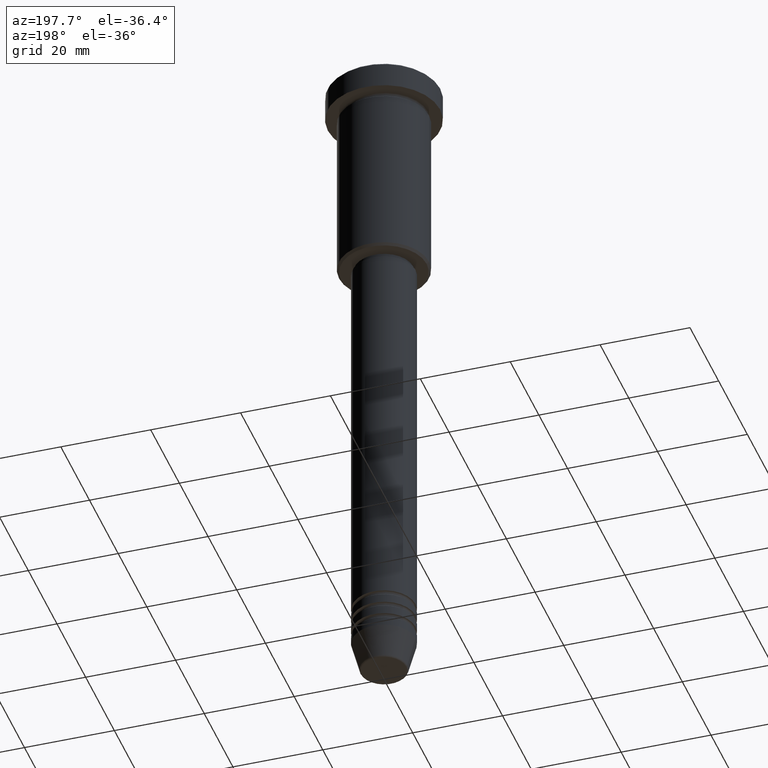
[diagram: clean part render]
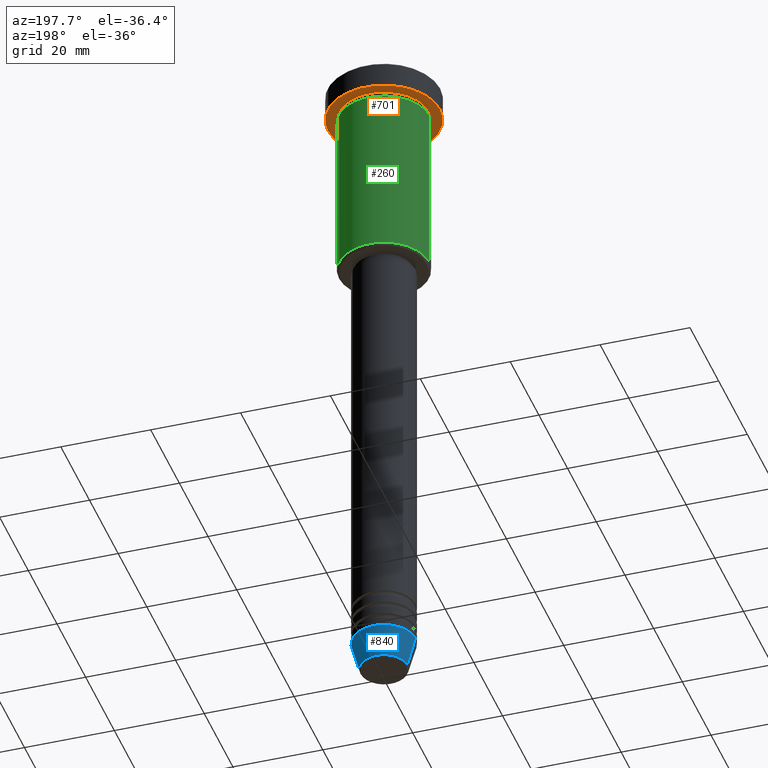
[diagram: same view with three faces highlighted in distinct colors, each labeled with its STEP entity id]
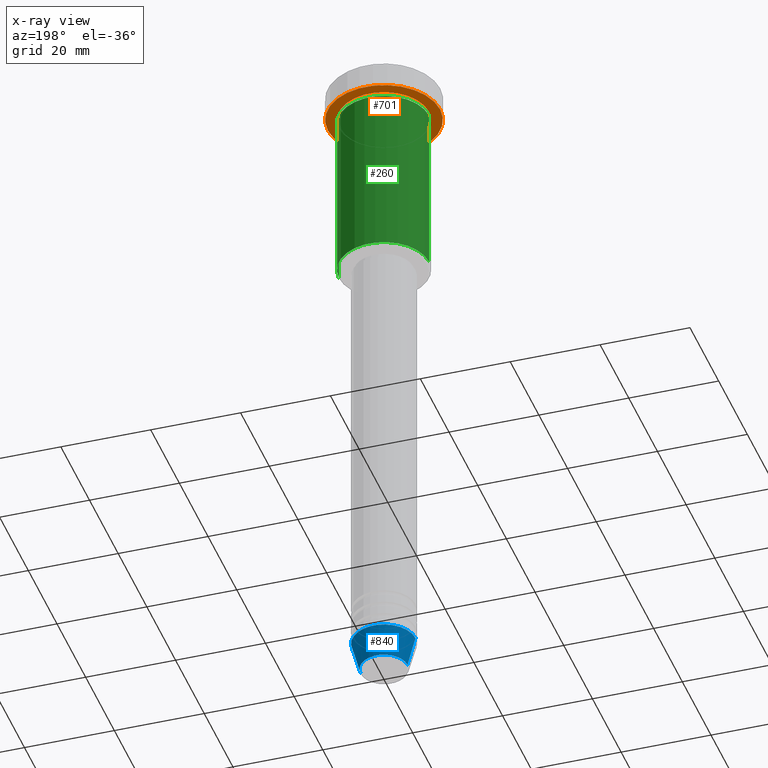
[diagram: x-ray of the same camera — body ghosted, the three highlighted faces saturated]
A machine part, auxiliary view with three faces highlighted in distinct colors.
The next image is the same camera in x-ray (body ghosted, the three faces saturated) — at least one of them is partly hidden behind the body in this view.
Their STEP definitions:

[orange] entity #701 — the highlighted planar face has unit normal (0, 0, -1).
#8 = CARTESIAN_POINT ( 'NONE',  ( 0.000000000000000000, 0.000000000000000000, -5.999999999999996447 ) ) ;
#30 = ORIENTED_EDGE ( 'NONE', *, *, #308, .T. ) ;
#42 = CARTESIAN_POINT ( 'NONE',  ( 0.000000000000000000, 0.000000000000000000, -5.999999999999996447 ) ) ;
#53 = AXIS2_PLACEMENT_3D ( 'NONE', #466, #1108, #127 ) ;
#107 = PLANE ( 'NONE',  #703 ) ;
#121 = CARTESIAN_POINT ( 'NONE',  ( 12.50000000000000000, 0.000000000000000000, -5.999999999999996447 ) ) ;
#127 = DIRECTION ( 'NONE',  ( 1.000000000000000000, 0.000000000000000000, 0.000000000000000000 ) ) ;
#141 = VERTEX_POINT ( 'NONE', #530 ) ;
#152 = CIRCLE ( 'NONE', #962, 10.00000000000000000 ) ;
#179 = CARTESIAN_POINT ( 'NONE',  ( 0.000000000000000000, 12.50000000000000000, -5.999999999999996447 ) ) ;
#180 = VERTEX_POINT ( 'NONE', #121 ) ;
#193 = EDGE_LOOP ( 'NONE', ( #30, #494 ) ) ;
#221 = CIRCLE ( 'NONE', #883, 10.00000000000000000 ) ;
#223 = VERTEX_POINT ( 'NONE', #414 ) ;
#259 = DIRECTION ( 'NONE',  ( -1.000000000000000000, 0.000000000000000000, 0.000000000000000000 ) ) ;
#308 = EDGE_CURVE ( 'NONE', #360, #141, #221, .T. ) ;
#337 = CIRCLE ( 'NONE', #995, 12.50000000000000000 ) ;
#360 = VERTEX_POINT ( 'NONE', #774 ) ;
#414 = CARTESIAN_POINT ( 'NONE',  ( -12.50000000000000000, 1.530808498934191521E-15, -5.999999999999996447 ) ) ;
#449 = FACE_BOUND ( 'NONE', #193, .T. ) ;
#466 = CARTESIAN_POINT ( 'NONE',  ( 0.000000000000000000, 0.000000000000000000, -5.999999999999996447 ) ) ;
#494 = ORIENTED_EDGE ( 'NONE', *, *, #534, .T. ) ;
#511 = CARTESIAN_POINT ( 'NONE',  ( 0.000000000000000000, 0.000000000000000000, -5.999999999999996447 ) ) ;
#530 = CARTESIAN_POINT ( 'NONE',  ( 10.00000000000000000, 1.224646799147353256E-15, -5.999999999999996447 ) ) ;
#534 = EDGE_CURVE ( 'NONE', #141, #360, #152, .T. ) ;
#556 = EDGE_CURVE ( 'NONE', #223, #180, #337, .T. ) ;
#566 = DIRECTION ( 'NONE',  ( -1.000000000000000000, 0.000000000000000000, 0.000000000000000000 ) ) ;
#701 = ADVANCED_FACE ( 'NONE', ( #449, #911 ), #107, .T. ) ;
#703 = AXIS2_PLACEMENT_3D ( 'NONE', #179, #976, #893 ) ;
#718 = DIRECTION ( 'NONE',  ( -0.000000000000000000, -0.000000000000000000, 1.000000000000000000 ) ) ;
#751 = ORIENTED_EDGE ( 'NONE', *, *, #880, .F. ) ;
#759 = DIRECTION ( 'NONE',  ( -0.000000000000000000, -0.000000000000000000, 1.000000000000000000 ) ) ;
#774 = CARTESIAN_POINT ( 'NONE',  ( -10.00000000000000000, 0.000000000000000000, -5.999999999999996447 ) ) ;
#805 = ORIENTED_EDGE ( 'NONE', *, *, #556, .F. ) ;
#869 = EDGE_LOOP ( 'NONE', ( #751, #805 ) ) ;
#880 = EDGE_CURVE ( 'NONE', #180, #223, #1071, .T. ) ;
#883 = AXIS2_PLACEMENT_3D ( 'NONE', #42, #759, #566 ) ;
#893 = DIRECTION ( 'NONE',  ( -1.000000000000000000, 0.000000000000000000, -0.000000000000000000 ) ) ;
#911 = FACE_OUTER_BOUND ( 'NONE', #869, .T. ) ;
#962 = AXIS2_PLACEMENT_3D ( 'NONE', #511, #1069, #259 ) ;
#976 = DIRECTION ( 'NONE',  ( 0.000000000000000000, 0.000000000000000000, -1.000000000000000000 ) ) ;
#995 = AXIS2_PLACEMENT_3D ( 'NONE', #8, #718, #1086 ) ;
#1069 = DIRECTION ( 'NONE',  ( -0.000000000000000000, -0.000000000000000000, 1.000000000000000000 ) ) ;
#1071 = CIRCLE ( 'NONE', #53, 12.50000000000000000 ) ;
#1086 = DIRECTION ( 'NONE',  ( 1.000000000000000000, 0.000000000000000000, 0.000000000000000000 ) ) ;
#1108 = DIRECTION ( 'NONE',  ( -0.000000000000000000, -0.000000000000000000, 1.000000000000000000 ) ) ;

[blue] entity #840 — the highlighted conical surface has half-angle 15 deg.
#45 = CARTESIAN_POINT ( 'NONE',  ( 0.000000000000000000, 0.000000000000000000, -144.0000000000000000 ) ) ;
#99 = EDGE_CURVE ( 'NONE', #640, #1048, #1042, .T. ) ;
#103 = EDGE_CURVE ( 'NONE', #539, #1048, #960, .T. ) ;
#109 = EDGE_LOOP ( 'NONE', ( #268, #142, #336, #562 ) ) ;
#142 = ORIENTED_EDGE ( 'NONE', *, *, #99, .T. ) ;
#215 = CARTESIAN_POINT ( 'NONE',  ( -7.000000000000000000, 8.572527594031473190E-16, -144.0000000000000000 ) ) ;
#228 = DIRECTION ( 'NONE',  ( 1.000000000000000000, 0.000000000000000000, 0.000000000000000000 ) ) ;
#268 = ORIENTED_EDGE ( 'NONE', *, *, #569, .T. ) ;
#310 = DIRECTION ( 'NONE',  ( 1.000000000000000000, 0.000000000000000000, 0.000000000000000000 ) ) ;
#327 = VERTEX_POINT ( 'NONE', #1146 ) ;
#336 = ORIENTED_EDGE ( 'NONE', *, *, #103, .F. ) ;
#348 = DIRECTION ( 'NONE',  ( 1.000000000000000000, 0.000000000000000000, 0.000000000000000000 ) ) ;
#355 = DIRECTION ( 'NONE',  ( -0.000000000000000000, -0.000000000000000000, 1.000000000000000000 ) ) ;
#416 = CIRCLE ( 'NONE', #628, 5.223655072137196598 ) ;
#424 = CONICAL_SURFACE ( 'NONE', #551, 7.000000000000000000, 0.2617993877991500740 ) ;
#454 = LINE ( 'NONE', #1161, #647 ) ;
#483 = FACE_OUTER_BOUND ( 'NONE', #109, .T. ) ;
#496 = CARTESIAN_POINT ( 'NONE',  ( -7.000000000000000000, 8.572527594031473190E-16, -144.0000000000000000 ) ) ;
#504 = DIRECTION ( 'NONE',  ( -0.000000000000000000, -0.000000000000000000, 1.000000000000000000 ) ) ;
#525 = CARTESIAN_POINT ( 'NONE',  ( 7.000000000000000000, 0.000000000000000000, -144.0000000000000000 ) ) ;
#539 = VERTEX_POINT ( 'NONE', #525 ) ;
#550 = CARTESIAN_POINT ( 'NONE',  ( -5.223655072137196598, 7.484830028987062146E-16, -150.6294095225512137 ) ) ;
#551 = AXIS2_PLACEMENT_3D ( 'NONE', #861, #682, #310 ) ;
#553 = VECTOR ( 'NONE', #755, 1000.000000000000000 ) ;
#562 = ORIENTED_EDGE ( 'NONE', *, *, #737, .F. ) ;
#569 = EDGE_CURVE ( 'NONE', #327, #640, #416, .T. ) ;
#628 = AXIS2_PLACEMENT_3D ( 'NONE', #798, #355, #348 ) ;
#640 = VERTEX_POINT ( 'NONE', #550 ) ;
#647 = VECTOR ( 'NONE', #814, 1000.000000000000000 ) ;
#682 = DIRECTION ( 'NONE',  ( -0.000000000000000000, -0.000000000000000000, 1.000000000000000000 ) ) ;
#737 = EDGE_CURVE ( 'NONE', #327, #539, #454, .T. ) ;
#755 = DIRECTION ( 'NONE',  ( -0.2588190451025213501, 3.169619151431772337E-17, 0.9659258262890680902 ) ) ;
#765 = AXIS2_PLACEMENT_3D ( 'NONE', #45, #504, #228 ) ;
#798 = CARTESIAN_POINT ( 'NONE',  ( 0.000000000000000000, 0.000000000000000000, -150.6294095225512137 ) ) ;
#814 = DIRECTION ( 'NONE',  ( 0.2588190451025213501, 0.000000000000000000, 0.9659258262890680902 ) ) ;
#840 = ADVANCED_FACE ( 'NONE', ( #483 ), #424, .T. ) ;
#861 = CARTESIAN_POINT ( 'NONE',  ( 0.000000000000000000, 0.000000000000000000, -144.0000000000000000 ) ) ;
#960 = CIRCLE ( 'NONE', #765, 7.000000000000000000 ) ;
#1042 = LINE ( 'NONE', #496, #553 ) ;
#1048 = VERTEX_POINT ( 'NONE', #215 ) ;
#1146 = CARTESIAN_POINT ( 'NONE',  ( 5.223655072137196598, 0.000000000000000000, -150.6294095225512137 ) ) ;
#1161 = CARTESIAN_POINT ( 'NONE',  ( 7.000000000000000000, 0.000000000000000000, -144.0000000000000000 ) ) ;

[green] entity #260 — the highlighted cylindrical surface (partial cylindrical patch) has radius 10 mm, axis along (-0, -0, 1).
#16 = DIRECTION ( 'NONE',  ( -0.000000000000000000, -0.000000000000000000, 1.000000000000000000 ) ) ;
#66 = EDGE_CURVE ( 'NONE', #675, #476, #679, .T. ) ;
#68 = DIRECTION ( 'NONE',  ( -0.000000000000000000, -0.000000000000000000, 1.000000000000000000 ) ) ;
#92 = AXIS2_PLACEMENT_3D ( 'NONE', #821, #760, #147 ) ;
#124 = EDGE_LOOP ( 'NONE', ( #716, #967, #1114, #469 ) ) ;
#147 = DIRECTION ( 'NONE',  ( -1.000000000000000000, 0.000000000000000000, 0.000000000000000000 ) ) ;
#155 = DIRECTION ( 'NONE',  ( -0.000000000000000000, -0.000000000000000000, 1.000000000000000000 ) ) ;
#168 = AXIS2_PLACEMENT_3D ( 'NONE', #280, #16, #382 ) ;
#171 = CARTESIAN_POINT ( 'NONE',  ( 10.00000000000000000, 0.000000000000000000, -6.999999999999996447 ) ) ;
#187 = EDGE_CURVE ( 'NONE', #757, #476, #706, .T. ) ;
#226 = CYLINDRICAL_SURFACE ( 'NONE', #727, 10.00000000000000000 ) ;
#235 = FACE_OUTER_BOUND ( 'NONE', #124, .T. ) ;
#260 = ADVANCED_FACE ( 'NONE', ( #235 ), #226, .T. ) ;
#280 = CARTESIAN_POINT ( 'NONE',  ( 0.000000000000000000, 0.000000000000000000, -6.999999999999996447 ) ) ;
#314 = EDGE_CURVE ( 'NONE', #890, #757, #753, .T. ) ;
#382 = DIRECTION ( 'NONE',  ( 1.000000000000000000, 0.000000000000000000, 0.000000000000000000 ) ) ;
#419 = CARTESIAN_POINT ( 'NONE',  ( 0.000000000000000000, 0.000000000000000000, 0.000000000000000000 ) ) ;
#469 = ORIENTED_EDGE ( 'NONE', *, *, #314, .F. ) ;
#476 = VERTEX_POINT ( 'NONE', #1125 ) ;
#501 = CARTESIAN_POINT ( 'NONE',  ( 10.00000000000000000, 0.000000000000000000, 0.000000000000000000 ) ) ;
#650 = CARTESIAN_POINT ( 'NONE',  ( 10.00000000000000000, 0.000000000000000000, -45.50000000000001421 ) ) ;
#675 = VERTEX_POINT ( 'NONE', #1174 ) ;
#679 = LINE ( 'NONE', #856, #804 ) ;
#706 = CIRCLE ( 'NONE', #168, 10.00000000000000000 ) ;
#716 = ORIENTED_EDGE ( 'NONE', *, *, #807, .T. ) ;
#727 = AXIS2_PLACEMENT_3D ( 'NONE', #419, #155, #1033 ) ;
#753 = LINE ( 'NONE', #501, #1037 ) ;
#757 = VERTEX_POINT ( 'NONE', #171 ) ;
#760 = DIRECTION ( 'NONE',  ( -0.000000000000000000, -0.000000000000000000, 1.000000000000000000 ) ) ;
#804 = VECTOR ( 'NONE', #68, 1000.000000000000000 ) ;
#807 = EDGE_CURVE ( 'NONE', #890, #675, #974, .T. ) ;
#821 = CARTESIAN_POINT ( 'NONE',  ( 0.000000000000000000, 0.000000000000000000, -45.50000000000001421 ) ) ;
#856 = CARTESIAN_POINT ( 'NONE',  ( -10.00000000000000000, 1.224646799147353256E-15, 0.000000000000000000 ) ) ;
#890 = VERTEX_POINT ( 'NONE', #650 ) ;
#967 = ORIENTED_EDGE ( 'NONE', *, *, #66, .T. ) ;
#974 = CIRCLE ( 'NONE', #92, 10.00000000000000000 ) ;
#1033 = DIRECTION ( 'NONE',  ( 1.000000000000000000, 0.000000000000000000, 0.000000000000000000 ) ) ;
#1037 = VECTOR ( 'NONE', #1124, 1000.000000000000000 ) ;
#1114 = ORIENTED_EDGE ( 'NONE', *, *, #187, .F. ) ;
#1124 = DIRECTION ( 'NONE',  ( -0.000000000000000000, -0.000000000000000000, 1.000000000000000000 ) ) ;
#1125 = CARTESIAN_POINT ( 'NONE',  ( -10.00000000000000000, 1.224646799147353256E-15, -6.999999999999996447 ) ) ;
#1174 = CARTESIAN_POINT ( 'NONE',  ( -10.00000000000000000, 1.224646799147353256E-15, -45.50000000000001421 ) ) ;